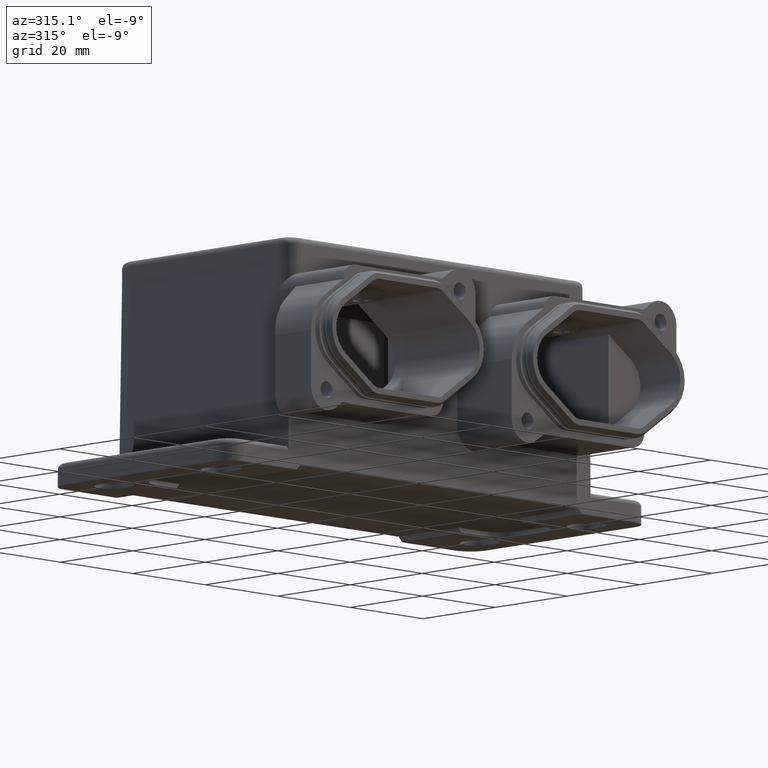
[diagram: clean part render]
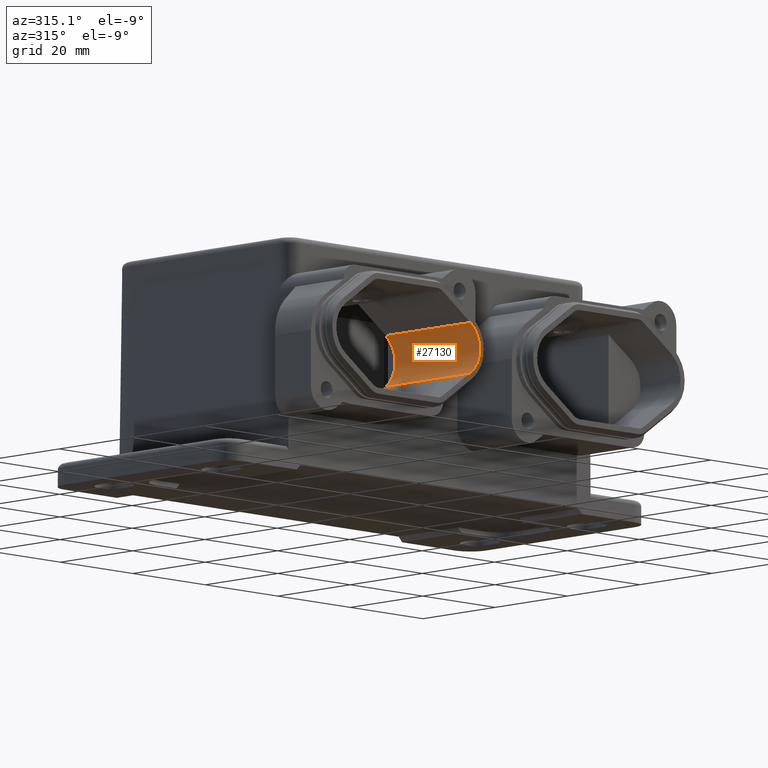
[diagram: same view with one face highlighted and labeled with its STEP entity id]
A machine part, auxiliary view. The second image highlights one B-rep face of the part: STEP entity #27130.
In plain terms, the highlighted cylindrical surface (edge-blend (fillet) strip) has radius 6.1 mm, axis along (0, 1, 0).
Its self-contained STEP definition (entity closure, byte-faithful):
#26720=CARTESIAN_POINT('',(-13.7871728598339,0.0999999999999943,
0.150000677173354));
#26730=DIRECTION('',(0.,-1.,0.));
#26740=DIRECTION('',(-1.,0.,0.));
#26750=AXIS2_PLACEMENT_3D('',#26720,#26730,#26740);
#26760=CYLINDRICAL_SURFACE('',#26750,6.10000000000018);
#26770=CARTESIAN_POINT('',(-13.7871728598339,-23.3397190907281,
0.150000677173354));
#26780=DIRECTION('',(0.,-1.,0.));
#26790=DIRECTION('',(-1.,0.,0.));
#26800=AXIS2_PLACEMENT_3D('',#26770,#26780,#26790);
#26810=CIRCLE('',#26800,6.10000000000018);
#26820=CARTESIAN_POINT('',(-17.2859891215752,-23.3397190907281,
5.1468281473365));
#26830=VERTEX_POINT('',#26820);
#26840=CARTESIAN_POINT('',(-17.2859891215755,-23.3397190907281,
-4.8468267929896));
#26850=VERTEX_POINT('',#26840);
#26860=EDGE_CURVE('',#26830,#26850,#26810,.T.);
#26870=ORIENTED_EDGE('',*,*,#26860,.T.);
#26880=CARTESIAN_POINT('',(-17.2859891215752,0.0999999999999943,
5.1468281473365));
#26890=DIRECTION('',(0.,-1.,0.));
#26900=VECTOR('',#26890,1.);
#26910=LINE('',#26880,#26900);
#26920=CARTESIAN_POINT('',(-17.2859891215752,0.0999999999999996,
5.1468281473365));
#26930=VERTEX_POINT('',#26920);
#26940=EDGE_CURVE('',#26930,#26830,#26910,.T.);
#26950=ORIENTED_EDGE('',*,*,#26940,.T.);
#26960=CARTESIAN_POINT('',(-13.7871728598339,0.0999999999999996,
0.150000677173354));
#26970=DIRECTION('',(0.,1.,0.));
#26980=DIRECTION('',(-1.,0.,0.));
#26990=AXIS2_PLACEMENT_3D('',#26960,#26970,#26980);
#27000=CIRCLE('',#26990,6.10000000000018);
#27010=CARTESIAN_POINT('',(-17.2859891215755,0.0999999999999996,
-4.8468267929896));
#27020=VERTEX_POINT('',#27010);
#27030=EDGE_CURVE('',#27020,#26930,#27000,.T.);
#27040=ORIENTED_EDGE('',*,*,#27030,.T.);
#27050=CARTESIAN_POINT('',(-17.2859891215755,0.0999999999999943,
-4.8468267929896));
#27060=DIRECTION('',(0.,-1.,0.));
#27070=VECTOR('',#27060,1.);
#27080=LINE('',#27050,#27070);
#27090=EDGE_CURVE('',#27020,#26850,#27080,.T.);
#27100=ORIENTED_EDGE('',*,*,#27090,.F.);
#27110=EDGE_LOOP('',(#27100,#27040,#26950,#26870));
#27120=FACE_OUTER_BOUND('',#27110,.T.);
#27130=ADVANCED_FACE('',(#27120),#26760,.F.);